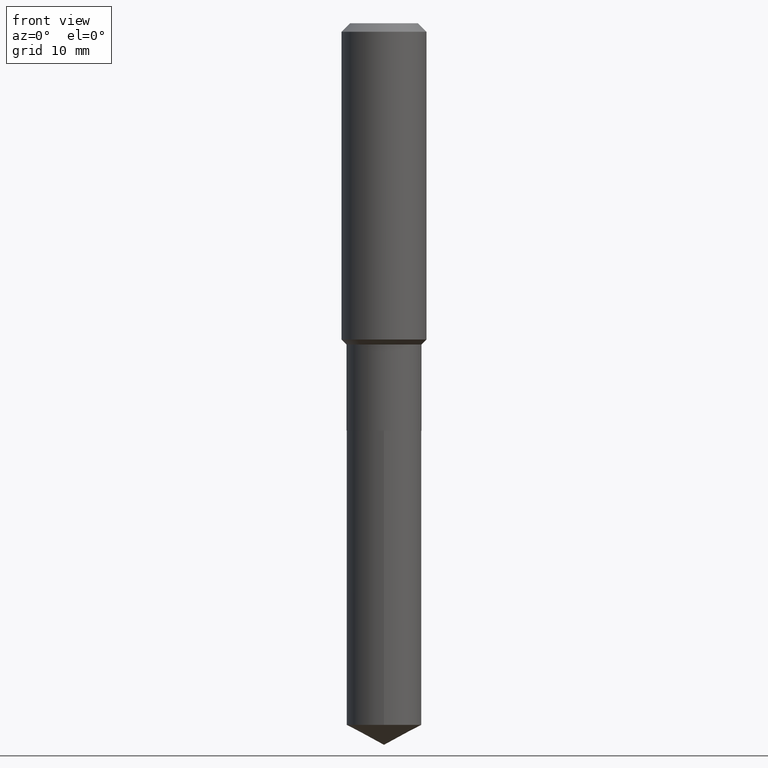
[diagram: clean part render]
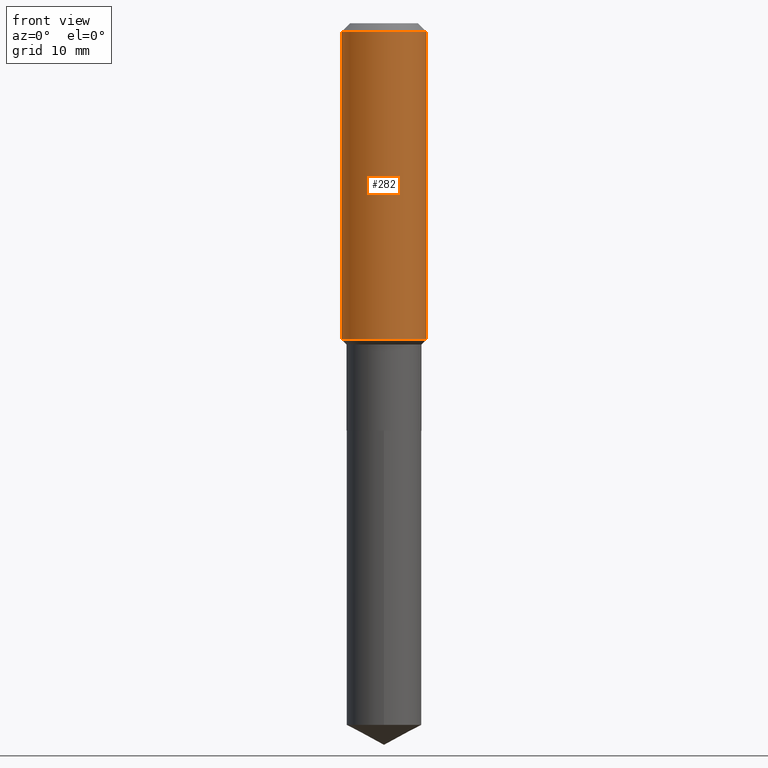
[diagram: same view with one face highlighted and labeled with its STEP entity id]
A machine part, front view. The second image highlights one B-rep face of the part: STEP entity #282.
In plain terms, the highlighted cylindrical surface (partial cylindrical patch) has radius 5.9995 mm, axis along (-0, 0, 1).
Its self-contained STEP definition (entity closure, byte-faithful):
#5 = VECTOR ( 'NONE', #460, 39.37007874015748143 ) ;
#41 = ORIENTED_EDGE ( 'NONE', *, *, #486, .F. ) ;
#96 = DIRECTION ( 'NONE',  ( 1.000000000000000000, -6.982962677686266711E-15, 0.000000000000000000 ) ) ;
#105 = CARTESIAN_POINT ( 'NONE',  ( -0.2361999999999999933, -1.476932286640498674E-15, -0.04724000000000028177 ) ) ;
#126 = EDGE_LOOP ( 'NONE', ( #41, #381, #377, #390 ) ) ;
#148 = AXIS2_PLACEMENT_3D ( 'NONE', #293, #211, #177 ) ;
#164 = VERTEX_POINT ( 'NONE', #300 ) ;
#170 = DIRECTION ( 'NONE',  ( -2.445468806185136877E-29, 3.491481338843145188E-15, 1.000000000000000000 ) ) ;
#177 = DIRECTION ( 'NONE',  ( 1.000000000000000000, -6.982962677686266711E-15, 4.876176775795935793E-29 ) ) ;
#182 = FACE_OUTER_BOUND ( 'NONE', #126, .T. ) ;
#209 = AXIS2_PLACEMENT_3D ( 'NONE', #447, #363, #456 ) ;
#211 = DIRECTION ( 'NONE',  ( -2.445468806185136597E-29, 3.491481338843145583E-15, 1.000000000000000000 ) ) ;
#216 = CIRCLE ( 'NONE', #254, 0.2361999999999999933 ) ;
#254 = AXIS2_PLACEMENT_3D ( 'NONE', #316, #437, #96 ) ;
#275 = VERTEX_POINT ( 'NONE', #105 ) ;
#282 = ADVANCED_FACE ( 'NONE', ( #182 ), #417, .T. ) ;
#287 = EDGE_CURVE ( 'NONE', #428, #164, #295, .T. ) ;
#291 = CARTESIAN_POINT ( 'NONE',  ( 0.2361999999999999933, -1.814313362916447440E-15, -0.04724000000000028177 ) ) ;
#293 = CARTESIAN_POINT ( 'NONE',  ( 0.000000000000000000, 0.000000000000000000, 0.000000000000000000 ) ) ;
#295 = CIRCLE ( 'NONE', #209, 0.2362000000000002153 ) ;
#300 = CARTESIAN_POINT ( 'NONE',  ( 0.2362000000000002153, -7.794906663034259691E-15, -1.760149999999999881 ) ) ;
#303 = CARTESIAN_POINT ( 'NONE',  ( 0.2362000000000001043, -1.649375784469496920E-15, 1.151752954443000508E-29 ) ) ;
#311 = CARTESIAN_POINT ( 'NONE',  ( -0.2362000000000002153, -4.467228936699403616E-15, -1.760149999999999881 ) ) ;
#316 = CARTESIAN_POINT ( 'NONE',  ( 1.155239464041865506E-30, -1.649375784469511859E-16, -0.04724000000000028177 ) ) ;
#328 = VECTOR ( 'NONE', #170, 39.37007874015748143 ) ;
#344 = VERTEX_POINT ( 'NONE', #291 ) ;
#358 = CARTESIAN_POINT ( 'NONE',  ( -0.2362000000000001043, 1.678301941865357380E-15, -1.161852468318209317E-29 ) ) ;
#362 = EDGE_CURVE ( 'NONE', #164, #344, #373, .T. ) ;
#363 = DIRECTION ( 'NONE',  ( -2.445468806185136597E-29, 3.491481338843145583E-15, 1.000000000000000000 ) ) ;
#373 = LINE ( 'NONE', #303, #5 ) ;
#377 = ORIENTED_EDGE ( 'NONE', *, *, #362, .T. ) ;
#381 = ORIENTED_EDGE ( 'NONE', *, *, #287, .T. ) ;
#390 = ORIENTED_EDGE ( 'NONE', *, *, #440, .F. ) ;
#417 = CYLINDRICAL_SURFACE ( 'NONE', #148, 0.2362000000000001043 ) ;
#428 = VERTEX_POINT ( 'NONE', #311 ) ;
#436 = LINE ( 'NONE', #358, #328 ) ;
#437 = DIRECTION ( 'NONE',  ( -2.445468806185136597E-29, 3.491481338843145583E-15, 1.000000000000000000 ) ) ;
#440 = EDGE_CURVE ( 'NONE', #275, #344, #216, .T. ) ;
#447 = CARTESIAN_POINT ( 'NONE',  ( 4.304391919206767645E-29, -6.145530878564761588E-15, -1.760149999999999881 ) ) ;
#456 = DIRECTION ( 'NONE',  ( 1.000000000000000000, -6.982962677686266711E-15, 0.000000000000000000 ) ) ;
#460 = DIRECTION ( 'NONE',  ( -2.445468806185136877E-29, 3.491481338843145188E-15, 1.000000000000000000 ) ) ;
#486 = EDGE_CURVE ( 'NONE', #428, #275, #436, .T. ) ;